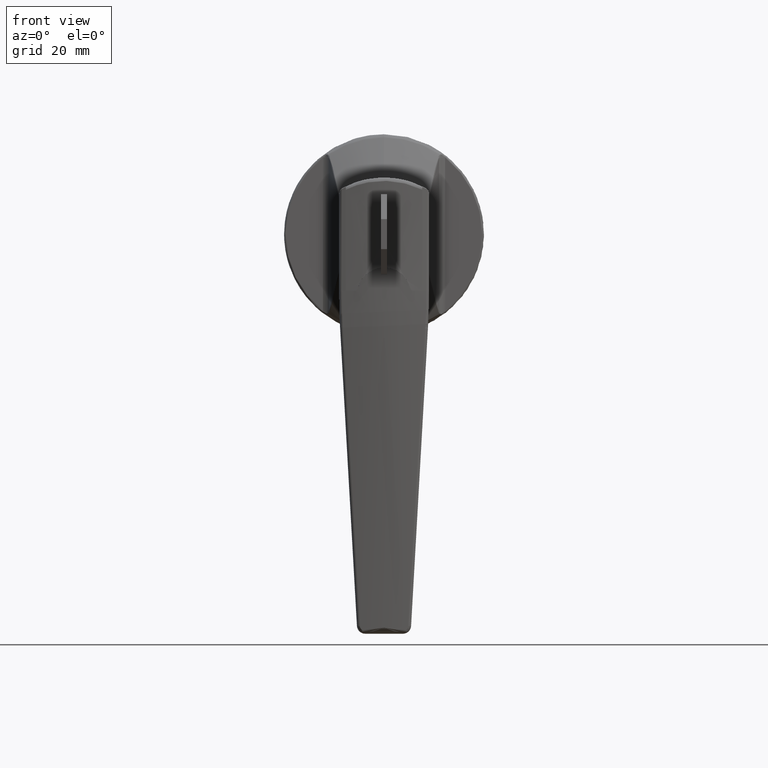
[diagram: clean part render]
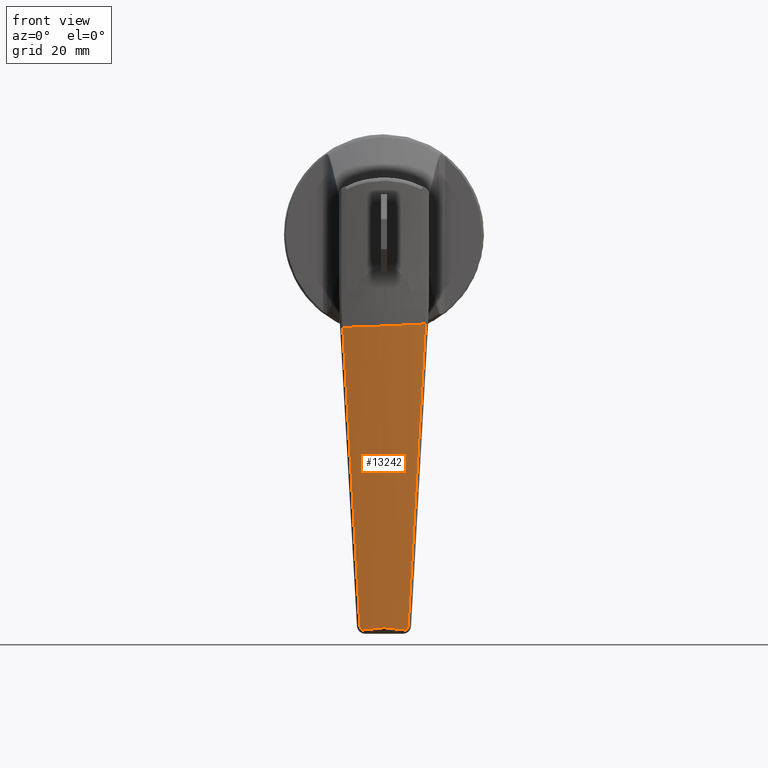
[diagram: same view with one face highlighted and labeled with its STEP entity id]
A machine part, front view. The second image highlights one B-rep face of the part: STEP entity #13242.
In plain terms, the highlighted face is a freeform B-spline surface patch.
Its self-contained STEP definition (entity closure, byte-faithful):
#10343=CARTESIAN_POINT('',(-39.841634125404198,6.479194918565350,-118.891981197941600));
#10344=VERTEX_POINT('',#10343);
#10360=CARTESIAN_POINT('',(-40.254948962157087,0.0,-118.168612447276200));
#10361=VERTEX_POINT('',#10360);
#10380=CARTESIAN_POINT('',(-39.841634125404198,6.479194918565350,-118.891981197941600));
#10381=CARTESIAN_POINT('',(-39.904228190337527,5.939779212623036,-118.847157246335200));
#10382=CARTESIAN_POINT('',(-39.959902409809601,5.400223849260376,-118.796519707159210));
#10383=CARTESIAN_POINT('',(-40.057250784519447,4.320516021465291,-118.686795574505500));
#10384=CARTESIAN_POINT('',(-40.098912787202060,3.780459359537653,-118.627705607331510));
#10385=CARTESIAN_POINT('',(-40.168010170924227,2.700634143645850,-118.503803223755200));
#10386=CARTESIAN_POINT('',(-40.195459379195327,2.160724956919812,-118.438969643474810));
#10387=CARTESIAN_POINT('',(-40.225874012479458,1.350654799238830,-118.339127465272990));
#10388=CARTESIAN_POINT('',(-40.234218677612127,1.080597214015376,-118.305412977183590));
#10389=CARTESIAN_POINT('',(-40.247298078095866,0.540380088869843,-118.237389055624400));
#10390=CARTESIAN_POINT('',(-40.252045964606587,0.270202537605197,-118.202923824866900));
#10391=CARTESIAN_POINT('',(-40.254948962157087,0.0,-118.168612447276200));
#10392=B_SPLINE_CURVE_WITH_KNOTS('',3,(#10380,#10381,#10382,#10383,#10384,#10385,#10386,#10387,#10388,#10389,#10390,#10391),.UNSPECIFIED.,.F.,.U.,(4,2,2,2,2,4),(0.0,0.250000000000000,0.500000000000000,0.750000000000001,0.875000000000000,1.0),.UNSPECIFIED.);
#10393=EDGE_CURVE('',#10344,#10361,#10392,.T.);
#10534=CARTESIAN_POINT('',(-39.855369756130600,7.255790688168430,-117.668293941803800));
#10535=VERTEX_POINT('',#10534);
#10570=CARTESIAN_POINT('',(-39.855369756130600,7.255790688168430,-117.668293941803800));
#10571=CARTESIAN_POINT('',(-39.845531205998441,7.248505163673237,-117.795106350150800));
#10572=CARTESIAN_POINT('',(-39.837950483277382,7.225252189667168,-117.918363385220800));
#10573=CARTESIAN_POINT('',(-39.831141769921992,7.176835895997821,-118.068122212978200));
#10574=CARTESIAN_POINT('',(-39.829915068723473,7.166170617495670,-118.097855102060000));
#10575=CARTESIAN_POINT('',(-39.827734627268264,7.142832185435668,-118.156873178676090));
#10576=CARTESIAN_POINT('',(-39.826783140803762,7.130160399204634,-118.186129225085100));
#10577=CARTESIAN_POINT('',(-39.824373533223181,7.089696467831684,-118.271942896482000));
#10578=CARTESIAN_POINT('',(-39.822309492468129,7.028905102408354,-118.382039296061000));
#10579=CARTESIAN_POINT('',(-39.822414867527662,6.954813512294827,-118.483730696653590));
#10580=CARTESIAN_POINT('',(-39.823295482093052,6.894160600094357,-118.556786032269500));
#10581=CARTESIAN_POINT('',(-39.823725358075279,6.873012370184886,-118.580682174315200));
#10582=CARTESIAN_POINT('',(-39.824840999782779,6.829483081735313,-118.626841924143090));
#10583=CARTESIAN_POINT('',(-39.825525807576810,6.807094642256716,-118.649128138584800));
#10584=CARTESIAN_POINT('',(-39.829556903881723,6.692111072189472,-118.756690333571300));
#10585=CARTESIAN_POINT('',(-39.834695763397043,6.590532332577408,-118.830538453198700));
#10586=CARTESIAN_POINT('',(-39.841634125404198,6.479194918565340,-118.891981197941600));
#10587=B_SPLINE_CURVE_WITH_KNOTS('',3,(#10570,#10571,#10572,#10573,#10574,#10575,#10576,#10577,#10578,#10579,#10580,#10581,#10582,#10583,#10584,#10585,#10586),.UNSPECIFIED.,.F.,.U.,(4,2,2,2,1,2,2,2,4),(0.0,0.249999999999994,0.312499999999992,0.374999999999991,0.499999999999987,0.624999999999984,0.687499999999983,0.749999999999982,1.0),.UNSPECIFIED.);
#10588=EDGE_CURVE('',#10535,#10344,#10587,.T.);
#10671=CARTESIAN_POINT('',(-39.841634125404198,-6.479194918565439,-118.891981197941600));
#10672=VERTEX_POINT('',#10671);
#10710=CARTESIAN_POINT('',(-39.855369756130550,-7.255790688168440,-117.668293941804190));
#10711=VERTEX_POINT('',#10710);
#10725=CARTESIAN_POINT('',(-39.841634125404198,-6.479194918565420,-118.891981197941600));
#10726=CARTESIAN_POINT('',(-39.834695749696259,-6.590532552429095,-118.830538331871300));
#10727=CARTESIAN_POINT('',(-39.829556329758603,-6.692120165685852,-118.756685252096700));
#10728=CARTESIAN_POINT('',(-39.825524988265222,-6.807119834223558,-118.649103715794690));
#10729=CARTESIAN_POINT('',(-39.824840155112717,-6.829511747952989,-118.626812967087600));
#10730=CARTESIAN_POINT('',(-39.823724546107663,-6.873048347813088,-118.580642578975800));
#10731=CARTESIAN_POINT('',(-39.823294921755981,-6.894191709615546,-118.556749956095900));
#10732=CARTESIAN_POINT('',(-39.822414808263687,-6.954832577326659,-118.483704940998000));
#10733=CARTESIAN_POINT('',(-39.822309665715537,-7.028916804024993,-118.382020867379000));
#10734=CARTESIAN_POINT('',(-39.824374085827927,-7.089711519655442,-118.271915134982610));
#10735=CARTESIAN_POINT('',(-39.826784455603303,-7.130179589407001,-118.186086445715010));
#10736=CARTESIAN_POINT('',(-39.827736363641137,-7.142853263212200,-118.156822671271800));
#10737=CARTESIAN_POINT('',(-39.829916640021843,-7.166184939710855,-118.097816085951810));
#10738=CARTESIAN_POINT('',(-39.831143225005860,-7.176847501061870,-118.068088426230400));
#10739=CARTESIAN_POINT('',(-39.837951276292159,-7.225252793434931,-117.918353074759000));
#10740=CARTESIAN_POINT('',(-39.845531201288239,-7.248505160185459,-117.795106410862000));
#10741=CARTESIAN_POINT('',(-39.855369756130550,-7.255790688168510,-117.668293941804190));
#10742=B_SPLINE_CURVE_WITH_KNOTS('',3,(#10725,#10726,#10727,#10728,#10729,#10730,#10731,#10732,#10733,#10734,#10735,#10736,#10737,#10738,#10739,#10740,#10741),.UNSPECIFIED.,.F.,.U.,(4,2,2,2,1,2,2,2,4),(0.0,0.250000000000005,0.312500000000015,0.375000000000025,0.500000000000025,0.625000000000025,0.687500000000012,0.749999999999999,1.0),.UNSPECIFIED.);
#10743=EDGE_CURVE('',#10672,#10711,#10742,.T.);
#10830=CARTESIAN_POINT('',(-40.254948962157087,0.0,-118.168612447276200));
#10831=CARTESIAN_POINT('',(-40.252045964606999,-0.270202537605761,-118.202923824862590));
#10832=CARTESIAN_POINT('',(-40.247298078095866,-0.540380088869853,-118.237389055624400));
#10833=CARTESIAN_POINT('',(-40.234218677612127,-1.080597214015391,-118.305412977183590));
#10834=CARTESIAN_POINT('',(-40.225874012479437,-1.350654799238859,-118.339127465272900));
#10835=CARTESIAN_POINT('',(-40.195459379195341,-2.160724956919848,-118.438969643474810));
#10836=CARTESIAN_POINT('',(-40.168010170924227,-2.700634143645884,-118.503803223755200));
#10837=CARTESIAN_POINT('',(-40.098912787202053,-3.780459359537701,-118.627705607331610));
#10838=CARTESIAN_POINT('',(-40.057250784519432,-4.320516021465348,-118.686795574505500));
#10839=CARTESIAN_POINT('',(-39.959902409809587,-5.400223849260449,-118.796519707159210));
#10840=CARTESIAN_POINT('',(-39.904228190337527,-5.939779212623120,-118.847157246335100));
#10841=CARTESIAN_POINT('',(-39.841634125404198,-6.479194918565439,-118.891981197941600));
#10842=B_SPLINE_CURVE_WITH_KNOTS('',3,(#10830,#10831,#10832,#10833,#10834,#10835,#10836,#10837,#10838,#10839,#10840,#10841),.UNSPECIFIED.,.F.,.U.,(4,2,2,2,2,4),(0.0,0.125000000000000,0.250000000000000,0.500000000000000,0.750000000000000,1.0),.UNSPECIFIED.);
#10843=EDGE_CURVE('',#10361,#10672,#10842,.T.);
#10907=CARTESIAN_POINT('',(-46.581874922183502,12.406647930384841,-28.007752028468548));
#10908=VERTEX_POINT('',#10907);
#10916=CARTESIAN_POINT('',(-46.659828119736602,-12.463210398087901,-26.944267675394350));
#10917=VERTEX_POINT('',#10916);
#10918=CARTESIAN_POINT('',(-46.659828119736602,-12.463210398087901,-26.944267675394350));
#10919=CARTESIAN_POINT('',(-47.086090434158422,-10.413572815774700,-27.068810391868219));
#10920=CARTESIAN_POINT('',(-47.403565910687732,-8.351708758483328,-27.182602453751731));
#10921=CARTESIAN_POINT('',(-47.718728752459363,-5.240928461476618,-27.339641621007221));
#10922=CARTESIAN_POINT('',(-47.796886341899111,-4.200998013915140,-27.389705099103569));
#10923=CARTESIAN_POINT('',(-47.873551689350847,-2.636585508657480,-27.461628607911230));
#10924=CARTESIAN_POINT('',(-47.892341552837003,-2.114361485634714,-27.485074180636090));
#10925=CARTESIAN_POINT('',(-47.916311378387867,-1.068400536521598,-27.530946388361791));
#10926=CARTESIAN_POINT('',(-47.921482159874209,-0.544253496663873,-27.553389560014359));
#10927=CARTESIAN_POINT('',(-47.913147603392552,2.071647936727919,-27.662795982163789));
#10928=CARTESIAN_POINT('',(-47.797637816821272,4.153618960178118,-27.741570421116052));
#10929=CARTESIAN_POINT('',(-47.351855385815043,8.296247538727064,-27.884742998026120));
#10930=CARTESIAN_POINT('',(-47.021585841733987,10.356906001406180,-27.949124305971790));
#10931=CARTESIAN_POINT('',(-46.581874922183502,12.406647930384819,-28.007752028468602));
#10932=B_SPLINE_CURVE_WITH_KNOTS('',3,(#10918,#10919,#10920,#10921,#10922,#10923,#10924,#10925,#10926,#10927,#10928,#10929,#10930,#10931),.UNSPECIFIED.,.F.,.U.,(4,2,2,2,2,2,4),(0.0,0.250000000000000,0.375000000000000,0.437500000000000,0.500000000000000,0.750000000000000,1.0),.UNSPECIFIED.);
#10933=EDGE_CURVE('',#10917,#10908,#10932,.T.);
#11108=CARTESIAN_POINT('',(-46.560155577355303,-12.389688968940201,-28.306942944188901));
#11109=VERTEX_POINT('',#11108);
#11133=CARTESIAN_POINT('',(-46.560155577355303,-12.389688968940201,-28.306942944188901));
#11134=CARTESIAN_POINT('',(-46.593054947806053,-12.415781006323380,-27.852779607398389));
#11135=CARTESIAN_POINT('',(-46.626277093391323,-12.440288014280110,-27.398554361646649));
#11136=CARTESIAN_POINT('',(-46.659828119736602,-12.463210398087920,-26.944267675394350));
#11137=QUASI_UNIFORM_CURVE('',3,(#11133,#11134,#11135,#11136),.UNSPECIFIED.,.F.,.U.);
#11138=EDGE_CURVE('',#11109,#10917,#11137,.T.);
#11331=CARTESIAN_POINT('',(-46.560155577582400,12.389688969120140,-28.306942941055201));
#11332=VERTEX_POINT('',#11331);
#11346=CARTESIAN_POINT('',(-46.581874922183502,12.406647930384841,-28.007752028468548));
#11347=CARTESIAN_POINT('',(-46.574619521502598,12.401071356374761,-28.107485499569691));
#11348=CARTESIAN_POINT('',(-46.567379758220511,12.395418367240190,-28.207215866066001));
#11349=CARTESIAN_POINT('',(-46.560155577582400,12.389688969120140,-28.306942941055201));
#11350=B_SPLINE_CURVE_WITH_KNOTS('',3,(#11346,#11347,#11348,#11349),.UNSPECIFIED.,.F.,.U.,(4,4),(0.0,0.000300457215709),.UNSPECIFIED.);
#11351=EDGE_CURVE('',#10908,#11332,#11350,.T.);
#11412=CARTESIAN_POINT('',(-39.855369756130550,-7.255790688168440,-117.668293941804190));
#11413=CARTESIAN_POINT('',(-43.346836612512142,-9.841249619058642,-72.665593871718954));
#11414=CARTESIAN_POINT('',(-46.560155577355303,-12.389688968940201,-28.306942944188901));
#11422=(BOUNDED_CURVE()B_SPLINE_CURVE(2,(#11412,#11413,#11414),.UNSPECIFIED.,.F.,.U.)CURVE()GEOMETRIC_REPRESENTATION_ITEM()QUASI_UNIFORM_CURVE()RATIONAL_B_SPLINE_CURVE((1.0,0.999059134450703,1.0))REPRESENTATION_ITEM(''));
#11423=EDGE_CURVE('',#10711,#11109,#11422,.T.);
#11505=CARTESIAN_POINT('',(-46.560155577582400,12.389688969120140,-28.306942941055201));
#11506=CARTESIAN_POINT('',(-43.346836603125205,9.841249703721479,-72.665593860327178));
#11507=CARTESIAN_POINT('',(-39.855369756130600,7.255790688168430,-117.668293941803800));
#11515=(BOUNDED_CURVE()B_SPLINE_CURVE(2,(#11505,#11506,#11507),.UNSPECIFIED.,.F.,.U.)CURVE()GEOMETRIC_REPRESENTATION_ITEM()QUASI_UNIFORM_CURVE()RATIONAL_B_SPLINE_CURVE((1.0,0.999059134389227,1.0))REPRESENTATION_ITEM(''));
#11516=EDGE_CURVE('',#11332,#10535,#11515,.T.);
#13217=CARTESIAN_POINT('',(-46.598179187157122,13.616855979472788,-24.625937132312970));
#13218=CARTESIAN_POINT('',(-38.432062214468843,13.616855979472788,-121.143663387999850));
#13219=CARTESIAN_POINT('',(-49.767152672995174,-0.030841255098925,-24.894055841410491));
#13220=CARTESIAN_POINT('',(-41.601035700306902,-0.030841255098927,-121.411782097097270));
#13221=CARTESIAN_POINT('',(-46.584566705106049,-13.675347856555511,-24.624785415161860));
#13222=CARTESIAN_POINT('',(-38.418449732417784,-13.675347856555511,-121.142511670848710));
#13230=(BOUNDED_SURFACE()B_SPLINE_SURFACE(1,2,((#13217,#13219,#13221),(#13218,#13220,#13222)),.UNSPECIFIED.,.F.,.F.,.U.)B_SPLINE_SURFACE_WITH_KNOTS((2,2),(3,3),(0.0,96.862567320814520),(0.0,27.654569237893160),.UNSPECIFIED.)GEOMETRIC_REPRESENTATION_ITEM()RATIONAL_B_SPLINE_SURFACE(((0.999191793192118,0.972084370106406,0.997299365568502),(0.999191793192118,0.972084370106406,0.997299365568502)))REPRESENTATION_ITEM('')SURFACE());
#13231=ORIENTED_EDGE('',*,*,#10843,.T.);
#13232=ORIENTED_EDGE('',*,*,#10743,.T.);
#13233=ORIENTED_EDGE('',*,*,#11423,.T.);
#13234=ORIENTED_EDGE('',*,*,#11138,.T.);
#13235=ORIENTED_EDGE('',*,*,#10933,.T.);
#13236=ORIENTED_EDGE('',*,*,#11351,.T.);
#13237=ORIENTED_EDGE('',*,*,#11516,.T.);
#13238=ORIENTED_EDGE('',*,*,#10588,.T.);
#13239=ORIENTED_EDGE('',*,*,#10393,.T.);
#13240=EDGE_LOOP('',(#13231,#13232,#13233,#13234,#13235,#13236,#13237,#13238,#13239));
#13241=FACE_OUTER_BOUND('',#13240,.T.);
#13242=ADVANCED_FACE('',(#13241),#13230,.T.);